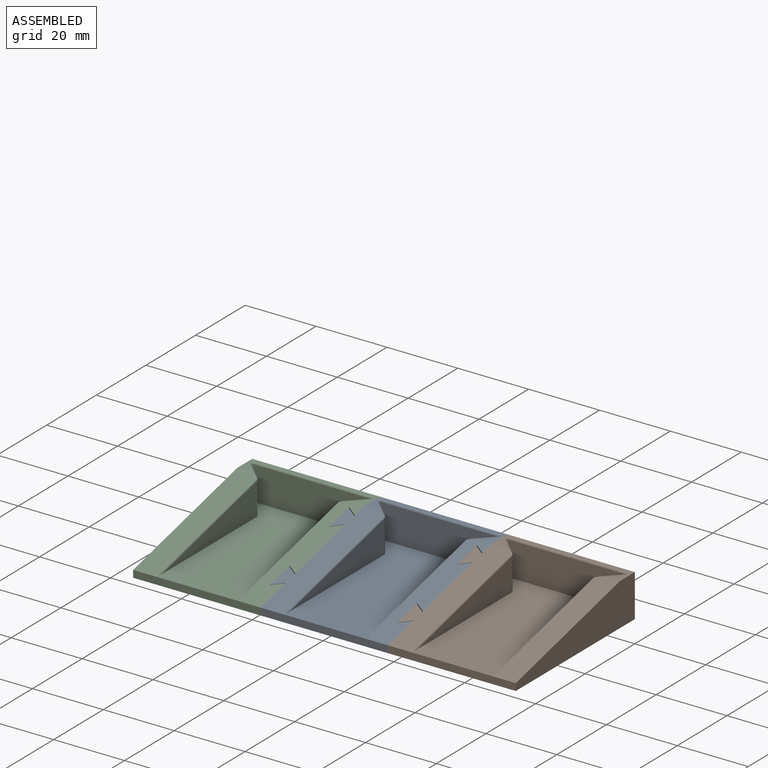
[diagram: assembled view]
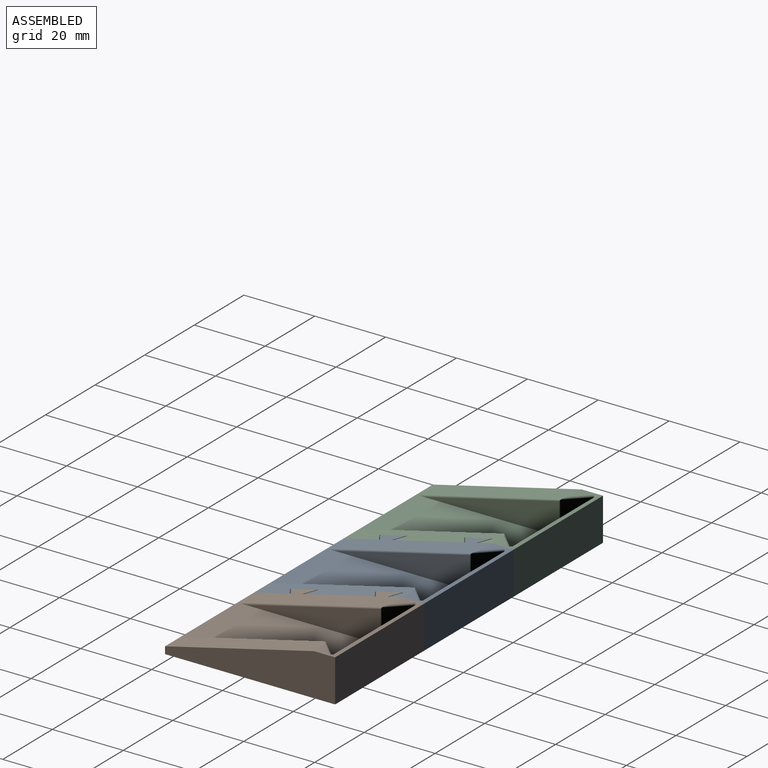
[diagram: assembled view, second angle]
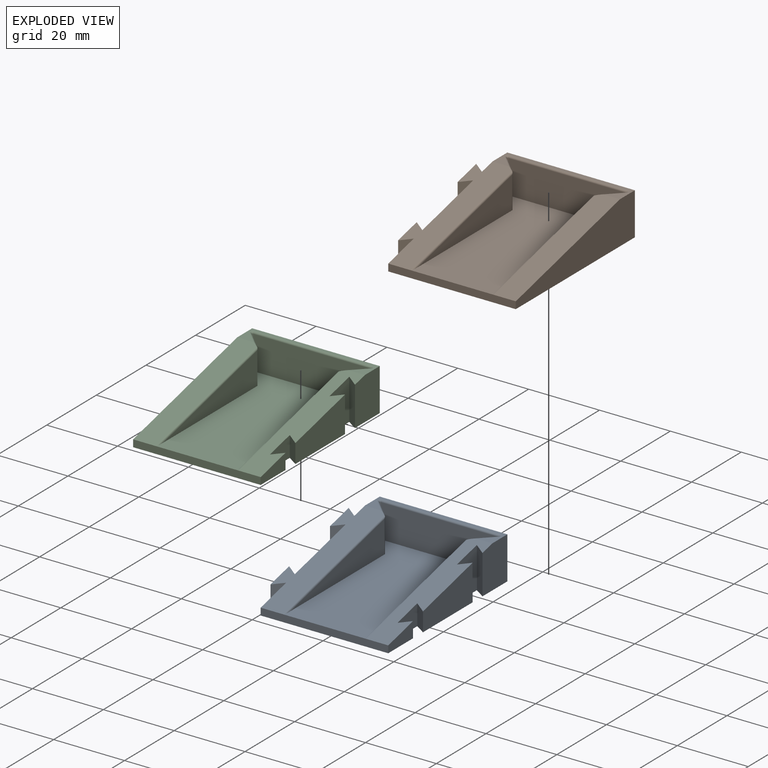
[diagram: exploded view]
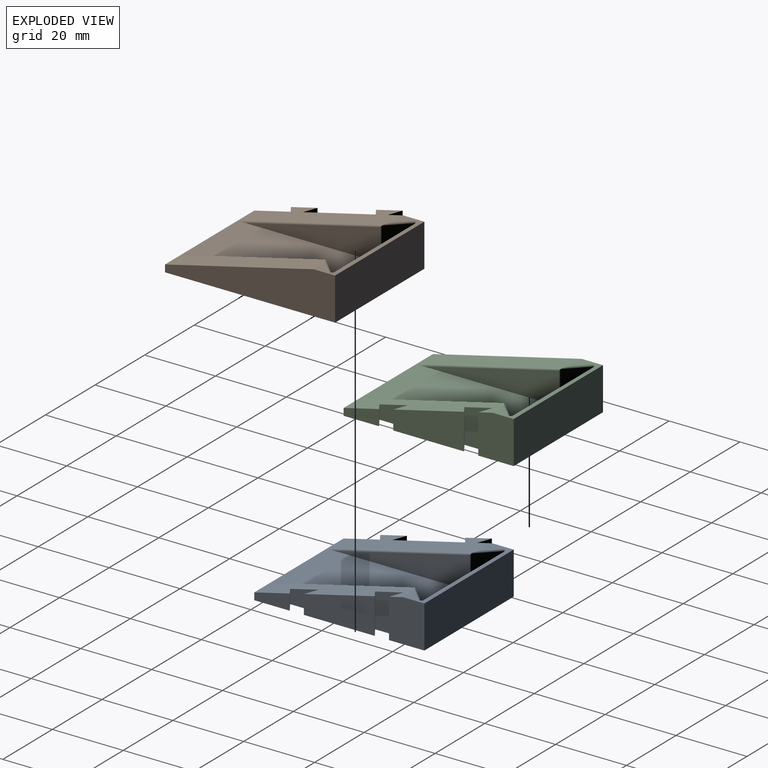
[diagram: exploded view, second angle]
ASSEMBLY  parts=3 mates=2
PART A: 41 faces, bbox 39x48x12 mm
  f0: plane 12x10.25mm, normal (-1,0,0), area 120.8mm2, adj f8,f10,f22,f23,f38
  f1: plane 20.5x10.15mm, normal (-1,0,0), area 158.1mm2, adj f8,f23,f37,f40
  f2: plane 12x10mm, normal (1,0,0), area 118.1mm2, adj f3,f8,f10,f13,f22
  f3: plane 42x10mm, normal (0,-0.23,0.97), area 232mm2, adj f2,f4,f6,f9,f11,f12,f13,f14
  f4: plane 20x10.1mm, normal (1,0,0), area 154.3mm2, adj f3,f8,f12,f16
  f5: plane 10.25x4.44mm, normal (-1,0,0), area 33mm2, adj f6,f8,f23,f36
  f6: plane 36x2mm, normal (0,-1,0), area 72mm2, adj f3,f5,f7,f8,f9,f23
  f7: plane 46.5x33.79mm, normal (0,0,1), area 1082.6mm2, adj f6,f17,f18,f19,f20,f21,f24,f25
  f8: plane 48x39mm, normal (0,0,-1), area 1725mm2, adj f0,f1,f2,f4,f5,f6,f9,f10
  f9: plane 10x4.38mm, normal (1,0,0), area 31.9mm2, adj f3,f6,f8,f15
  f10: plane 36x12mm, normal (0,1,0), area 432mm2, adj f0,f2,f8,f22
  f11: plane 11.52x8mm, normal (1,0,0), area 84.6mm2, adj f3,f8,f12,f13
  f12: plane 10.1x3mm, normal (-0.55,0.83,0), area 35.5mm2, adj f3,f4,f8,f11
  f13: plane 11.52x3mm, normal (-0.55,-0.83,0), area 40.7mm2, adj f2,f3,f8,f11
  f14: plane 8x5.81mm, normal (1,0,0), area 38.9mm2, adj f3,f8,f15,f16
  f15: plane 4.38x3mm, normal (-0.55,0.83,0), area 14.9mm2, adj f3,f8,f9,f14
  f16: plane 5.81x3mm, normal (-0.55,-0.83,0), area 20.1mm2, adj f3,f4,f8,f14
  f17: plane 38.13x9.08mm, normal (1,0,0), area 173.1mm2, adj f7,f26,f27
  f18: plane 9.5x5.43mm, normal (0.71,0.71,0), area 72.9mm2, adj f7,f24,f26,f28
  f19: plane 33.29x9.5mm, normal (0,-1,0), area 316.3mm2, adj f7,f24,f25,f30
  f20: plane 9.5x5.43mm, normal (-0.71,0.71,0), area 72.9mm2, adj f7,f25,f32,f34
  f21: plane 38.13x9.08mm, normal (-1,0,0), area 173.1mm2, adj f7,f31,f32
  f22: plane 36x6mm, normal (0,0,1), area 57.8mm2, adj f0,f2,f3,f10,f23,f28,f29,f30
  f23: plane 42x10mm, normal (0,-0.23,0.97), area 303mm2, adj f0,f1,f5,f6,f22,f27,f28,f35
  f24: cylinder r=0.25mm len=9.5mm, axis (0,0,1), area 5.6mm2, adj f7,f18,f19,f29
  f25: cylinder r=0.25mm len=9.5mm, axis (0,0,1), area 5.6mm2, adj f7,f19,f20,f33
  f26: cylinder r=0.5mm len=9.51mm, axis (0,0,-1), area 3.7mm2, adj f7,f17,f18,f27,f28
  f27: cylinder r=0.5mm len=41.03mm, axis (0,-0.97,-0.23), area 32.2mm2, adj f7,f17,f23,f26,f28
  f28: cylinder r=0.5mm len=5.79mm, axis (0.71,-0.71,0), area 5.1mm2, adj f18,f22,f23,f26,f27,f29
  f29: torus R=0.75mm, axis (0,0,1), area 0.8mm2, adj f22,f24,f28,f30
  f30: cylinder r=0.5mm len=33.29mm, axis (-1,0,0), area 26.1mm2, adj f19,f22,f29,f33
  f31: cylinder r=0.5mm len=41.03mm, axis (0,0.97,0.23), area 32.2mm2, adj f3,f7,f21,f32,f34
  f32: cylinder r=0.5mm len=9.51mm, axis (0,0,-1), area 3.7mm2, adj f7,f20,f21,f31,f34
  f33: torus R=0.75mm, axis (0,0,1), area 0.8mm2, adj f22,f25,f30,f34
  f34: cylinder r=0.5mm len=5.79mm, axis (0.71,0.71,0), area 5.1mm2, adj f3,f20,f22,f31,f32,f33
  f35: plane 7.5x5.75mm, normal (-1,0,0), area 36.4mm2, adj f8,f23,f36,f37
  f36: plane 4.44x3mm, normal (0.55,-0.83,0), area 15.2mm2, adj f5,f8,f23,f35
  f37: plane 5.75x3mm, normal (0.55,0.83,0), area 19.9mm2, adj f1,f8,f23,f35
  f38: plane 11.46x3mm, normal (0.55,0.83,0), area 40.5mm2, adj f0,f8,f23,f39
  f39: plane 11.46x7.5mm, normal (-1,0,0), area 79.3mm2, adj f8,f23,f38,f40
  f40: plane 10.15x3mm, normal (0.55,-0.83,0), area 35.8mm2, adj f1,f8,f23,f39
PART B: 33 faces, bbox 39x48x12 mm
  f0: plane 20.5x10.15mm, normal (-1,0,0), area 158.1mm2, adj f7,f15,f29,f32
  f1: plane 12x10.25mm, normal (-1,0,0), area 120.8mm2, adj f6,f7,f13,f15,f30
  f2: plane 10.25x4.44mm, normal (-1,0,0), area 33mm2, adj f3,f7,f15,f28
  f3: plane 36x2mm, normal (0,-1,0), area 72mm2, adj f2,f4,f5,f7,f14,f15
  f4: plane 46.5x33.79mm, normal (0,0,1), area 1082.6mm2, adj f3,f8,f9,f10,f11,f12,f16,f17
  f5: plane 48x12mm, normal (1,0,0), area 366mm2, adj f3,f6,f7,f13,f14
  f6: plane 36x12mm, normal (0,1,0), area 432mm2, adj f1,f5,f7,f13
  f7: plane 48x39mm, normal (0,0,-1), area 1761mm2, adj f0,f1,f2,f3,f5,f6,f27,f28
  f8: plane 38.13x9.08mm, normal (1,0,0), area 173.1mm2, adj f4,f18,f19
  f9: plane 9.5x5.43mm, normal (0.71,0.71,0), area 72.9mm2, adj f4,f16,f18,f20
  f10: plane 33.29x9.5mm, normal (0,-1,0), area 316.3mm2, adj f4,f16,f17,f22
  f11: plane 9.5x5.43mm, normal (-0.71,0.71,0), area 72.9mm2, adj f4,f17,f24,f26
  f12: plane 38.13x9.08mm, normal (-1,0,0), area 173.1mm2, adj f4,f23,f24
  f13: plane 36x6mm, normal (0,0,1), area 57.8mm2, adj f1,f5,f6,f14,f15,f20,f21,f22
  f14: plane 42x10mm, normal (0,-0.23,0.97), area 269mm2, adj f3,f5,f13,f23,f26
  f15: plane 42x10mm, normal (0,-0.23,0.97), area 303mm2, adj f0,f1,f2,f3,f13,f19,f20,f27
  f16: cylinder r=0.25mm len=9.5mm, axis (0,0,1), area 5.6mm2, adj f4,f9,f10,f21
  f17: cylinder r=0.25mm len=9.5mm, axis (0,0,1), area 5.6mm2, adj f4,f10,f11,f25
  f18: cylinder r=0.5mm len=9.51mm, axis (0,0,-1), area 3.7mm2, adj f4,f8,f9,f19,f20
  f19: cylinder r=0.5mm len=41.03mm, axis (0,-0.97,-0.23), area 32.2mm2, adj f4,f8,f15,f18,f20
  f20: cylinder r=0.5mm len=5.79mm, axis (0.71,-0.71,0), area 5.1mm2, adj f9,f13,f15,f18,f19,f21
  f21: torus R=0.75mm, axis (0,0,1), area 0.8mm2, adj f13,f16,f20,f22
  f22: cylinder r=0.5mm len=33.29mm, axis (-1,0,0), area 26.1mm2, adj f10,f13,f21,f25
  f23: cylinder r=0.5mm len=41.03mm, axis (0,0.97,0.23), area 32.2mm2, adj f4,f12,f14,f24,f26
  f24: cylinder r=0.5mm len=9.51mm, axis (0,0,-1), area 3.7mm2, adj f4,f11,f12,f23,f26
  f25: torus R=0.75mm, axis (0,0,1), area 0.8mm2, adj f13,f17,f22,f26
  f26: cylinder r=0.5mm len=5.79mm, axis (0.71,0.71,0), area 5.1mm2, adj f11,f13,f14,f23,f24,f25
  f27: plane 7.5x5.75mm, normal (-1,0,0), area 36.4mm2, adj f7,f15,f28,f29
  f28: plane 4.44x3mm, normal (0.55,-0.83,0), area 15.2mm2, adj f2,f7,f15,f27
  f29: plane 5.75x3mm, normal (0.55,0.83,0), area 19.9mm2, adj f0,f7,f15,f27
  f30: plane 11.46x3mm, normal (0.55,0.83,0), area 40.5mm2, adj f1,f7,f15,f31
  f31: plane 11.46x7.5mm, normal (-1,0,0), area 79.3mm2, adj f7,f15,f30,f32
  f32: plane 10.15x3mm, normal (0.55,-0.83,0), area 35.8mm2, adj f0,f7,f15,f31
PART C: 33 faces, bbox 36x48x12 mm
  f0: plane 42x10mm, normal (0,-0.23,0.97), area 232mm2, adj f1,f2,f4,f7,f9,f10,f11,f12
  f1: plane 20x10.1mm, normal (1,0,0), area 154.3mm2, adj f0,f6,f10,f14
  f2: plane 12x10mm, normal (1,0,0), area 118.1mm2, adj f0,f6,f8,f11,f20
  f3: plane 48x12mm, normal (-1,0,0), area 366mm2, adj f4,f6,f8,f20,f21
  f4: plane 36x2mm, normal (0,-1,0), area 72mm2, adj f0,f3,f5,f6,f7,f21
  f5: plane 46.5x33.79mm, normal (0,0,1), area 1082.6mm2, adj f4,f15,f16,f17,f18,f19,f22,f23
  f6: plane 48x36mm, normal (0,0,-1), area 1692mm2, adj f1,f2,f3,f4,f7,f8,f9,f10
  f7: plane 10x4.38mm, normal (1,0,0), area 31.9mm2, adj f0,f4,f6,f13
  f8: plane 36x12mm, normal (0,1,0), area 432mm2, adj f2,f3,f6,f20
  f9: plane 11.52x8mm, normal (1,0,0), area 84.6mm2, adj f0,f6,f10,f11
  f10: plane 10.1x3mm, normal (-0.55,0.83,0), area 35.5mm2, adj f0,f1,f6,f9
  f11: plane 11.52x3mm, normal (-0.55,-0.83,0), area 40.7mm2, adj f0,f2,f6,f9
  f12: plane 8x5.81mm, normal (1,0,0), area 38.9mm2, adj f0,f6,f13,f14
  f13: plane 4.38x3mm, normal (-0.55,0.83,0), area 14.9mm2, adj f0,f6,f7,f12
  f14: plane 5.81x3mm, normal (-0.55,-0.83,0), area 20.1mm2, adj f0,f1,f6,f12
  f15: plane 38.13x9.08mm, normal (1,0,0), area 173.1mm2, adj f5,f24,f25
  f16: plane 9.5x5.43mm, normal (0.71,0.71,0), area 72.9mm2, adj f5,f22,f24,f26
  f17: plane 33.29x9.5mm, normal (0,-1,0), area 316.3mm2, adj f5,f22,f23,f28
  f18: plane 9.5x5.43mm, normal (-0.71,0.71,0), area 72.9mm2, adj f5,f23,f30,f32
  f19: plane 38.13x9.08mm, normal (-1,0,0), area 173.1mm2, adj f5,f29,f30
  f20: plane 36x6mm, normal (0,0,1), area 57.8mm2, adj f0,f2,f3,f8,f21,f26,f27,f28
  f21: plane 42x10mm, normal (0,-0.23,0.97), area 269mm2, adj f3,f4,f20,f25,f26
  f22: cylinder r=0.25mm len=9.5mm, axis (0,0,1), area 5.6mm2, adj f5,f16,f17,f27
  f23: cylinder r=0.25mm len=9.5mm, axis (0,0,1), area 5.6mm2, adj f5,f17,f18,f31
  f24: cylinder r=0.5mm len=9.51mm, axis (0,0,-1), area 3.7mm2, adj f5,f15,f16,f25,f26
  f25: cylinder r=0.5mm len=41.03mm, axis (0,-0.97,-0.23), area 32.2mm2, adj f5,f15,f21,f24,f26
  f26: cylinder r=0.5mm len=5.79mm, axis (0.71,-0.71,0), area 5.1mm2, adj f16,f20,f21,f24,f25,f27
  f27: torus R=0.75mm, axis (0,0,1), area 0.8mm2, adj f20,f22,f26,f28
  f28: cylinder r=0.5mm len=33.29mm, axis (-1,0,0), area 26.1mm2, adj f17,f20,f27,f31
  f29: cylinder r=0.5mm len=41.03mm, axis (0,0.97,0.23), area 32.2mm2, adj f0,f5,f19,f30,f32
  f30: cylinder r=0.5mm len=9.51mm, axis (0,0,-1), area 3.7mm2, adj f5,f18,f19,f29,f32
  f31: torus R=0.75mm, axis (0,0,1), area 0.8mm2, adj f20,f23,f28,f32
  f32: cylinder r=0.5mm len=5.79mm, axis (0.71,0.71,0), area 5.1mm2, adj f0,f18,f20,f29,f30,f31
PLACE A t=(40.47,3.91,-1.37)mm
PLACE B t=(76.47,3.91,-1.37)mm
PLACE C t=(4.47,3.91,-1.37)mm
MATE slider A.f8 <-> B.f7  axis (0,0,-1) through (55.47,-8.09,-1.37)mm
MATE slider C.f6 <-> A.f8  axis (0,0,-1) through (19.47,-8.09,-1.37)mm
